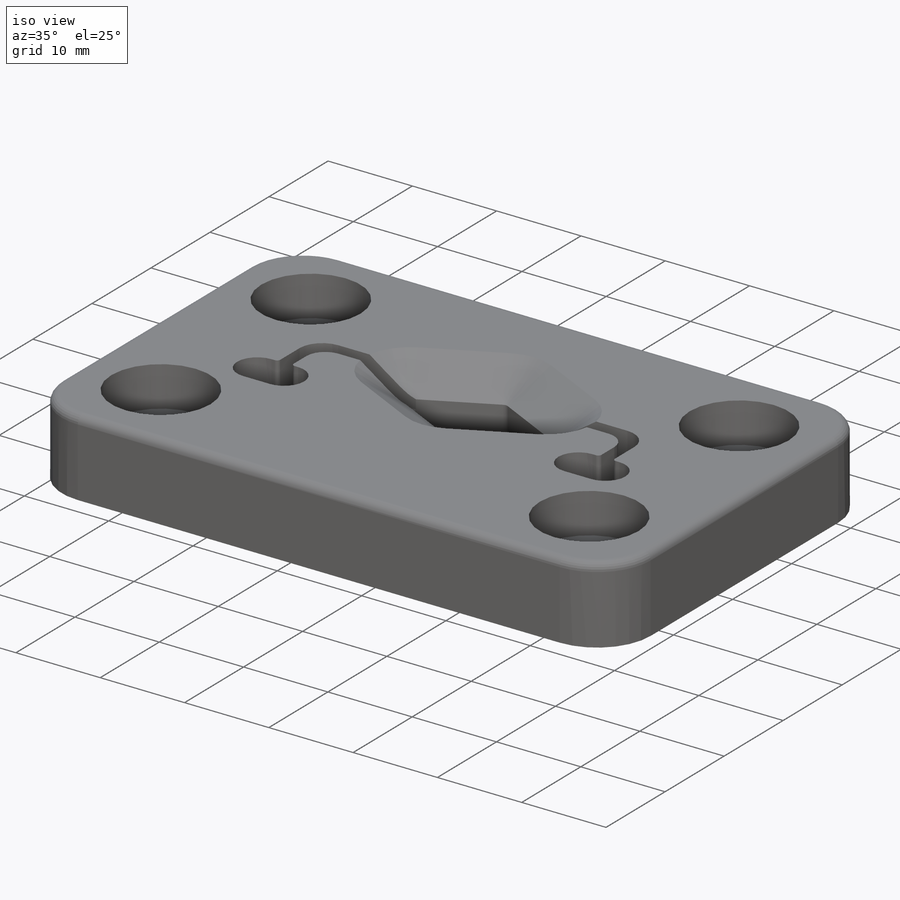
[diagram: iso view]
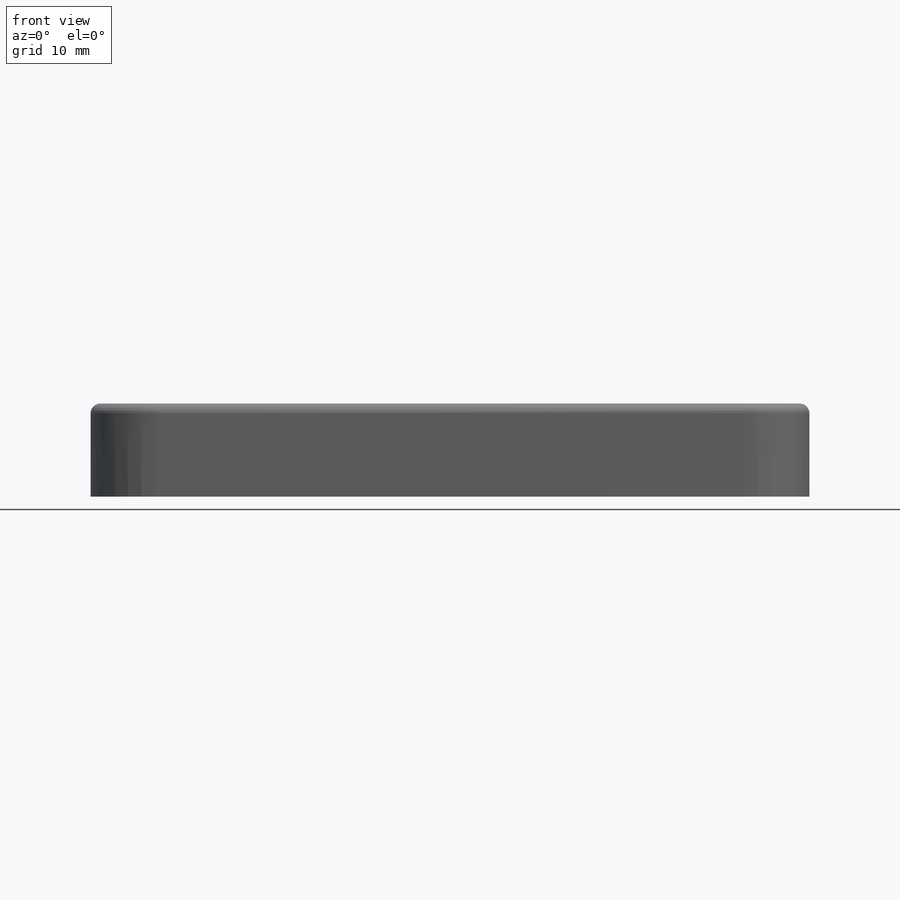
[diagram: front view]
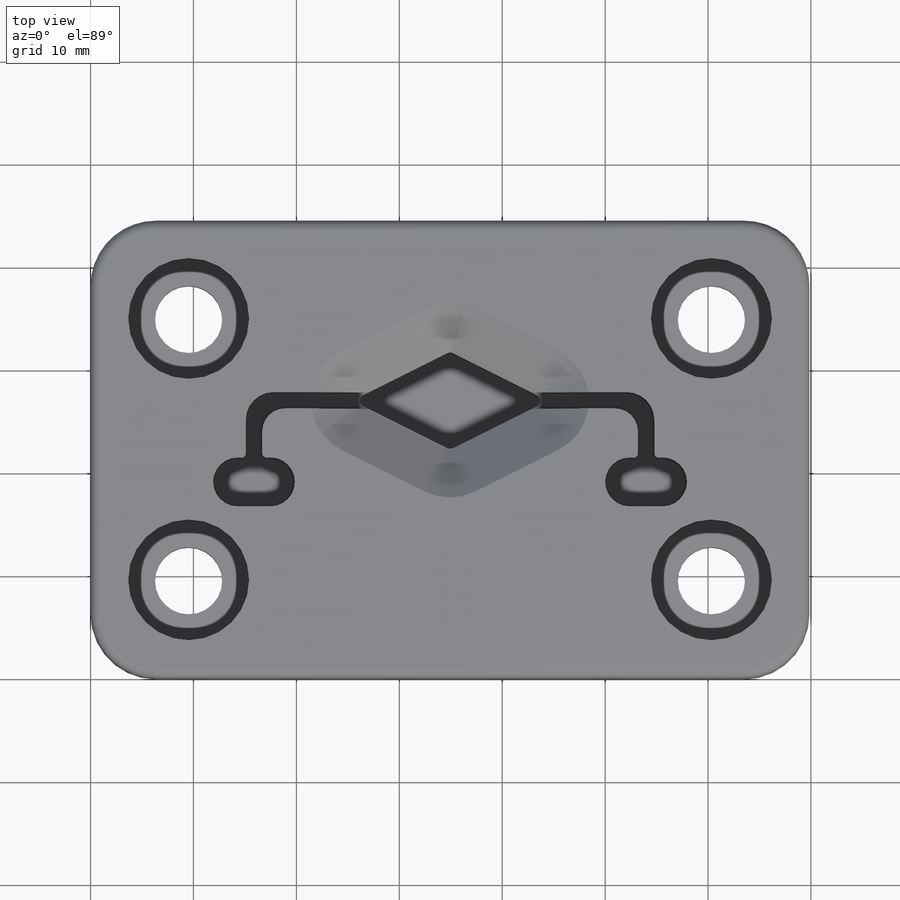
[diagram: top view]
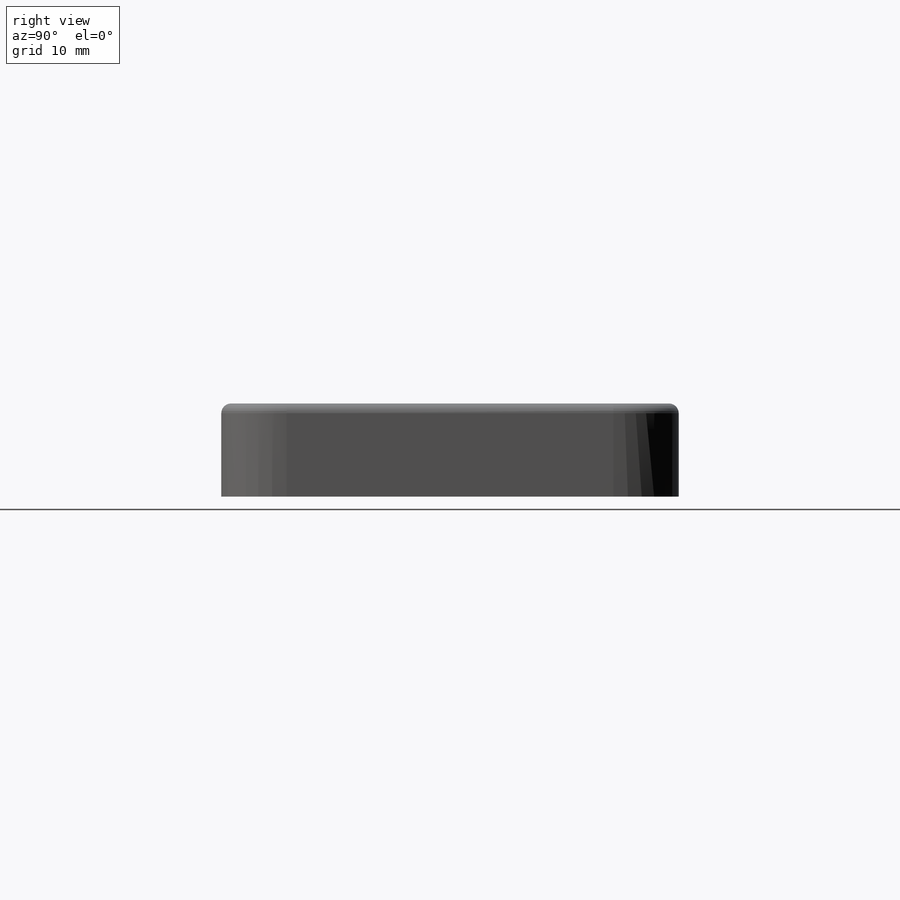
[diagram: right view]
SOLIDWORKS PART (.sldprt)
format: sldprt  version: not decoded by parser v0  size: 510,464 bytes
history: native  units: mm
features: sketch x5, fillet x5, cut_extrude x4, material x1, extrude x1, chamfer x1 (+16 scaffold rows collapsed)
feature tree (33):
  scaffold x16  (default folders/planes/origin — collapsed)
  material  "Material <not specified>"
  sketch  "base_sketch"  dims[D1=44.45mm D2=69.85mm]
  extrude  "Boss-Extrude2"  Depth=9.04875mm
  sketch  "chamber_bottom"  dims[D1=25.4mm D2=19.05mm D3=12.7mm D4=17.4625mm D5=9.525mm D6=~35.71875mm]
  cut_extrude  "Cut-Extrude1"  Depth=7.14375mm
  fillet  "Fillet2"  Radius=0.635mm
  chamfer  "Chamfer1"  Distance=4.7625mm Angle=35deg
  sketch  "Sketch3"  dims[c1.D2=~2.38125mm c1.D5=~2.38125mm c1.D14=1.905mm c1.D15=1.905mm c2.D14=1.905mm c2.D16=~2.69875mm c2.D17=~2.69875mm c2.D1=3.175mm c2.D3=15.875mm c2.D4=19.05mm c2.D5=15.875mm c2.D6=3.175mm c2.D7=15.875mm c2.D8=1.5875mm c2.D9=1.5875mm c2.D10=1.5875mm c2.D11=~0.79375mm c2.D12=~16.66875mm c2.D13=~0.79375mm c2.D15=1.5875mm c3.D14=1.5875mm]
  cut_extrude  "Cut-Extrude3"  Depth=4.7625mm
  sketch  "Sketch5"  dims[D9=6.5278mm D10=6.5278mm D11=6.5278mm D12=6.5278mm D1=9.525mm D2=9.525mm D3=9.525mm D4=9.525mm D5=9.525mm D6=9.525mm D7=9.525mm D8=9.525mm]
  cut_extrude  "Cut-Extrude4"  [1 undecoded]
  sketch  "Sketch6"  dims[D1=11.7475mm D2=11.7475mm D3=11.7475mm D4=11.7475mm]
  cut_extrude  "Cut-Extrude5"  Depth=4.7625mm
  fillet  "Fillet4"  Radius=6.35mm
  fillet  "Fillet5"  Radius=0.9525mm
  fillet  "Fillet6"  Radius=0.381mm
  fillet  "Fillet7"  Radius=0.381mm
decode coverage: 15 of 16 modeling features carry decoded parameters
note: ~ marks probable driven/reference dimensions
note: 1 parameter value undecoded
note: suppression state not decoded; provenance and decode notes live in map.json
